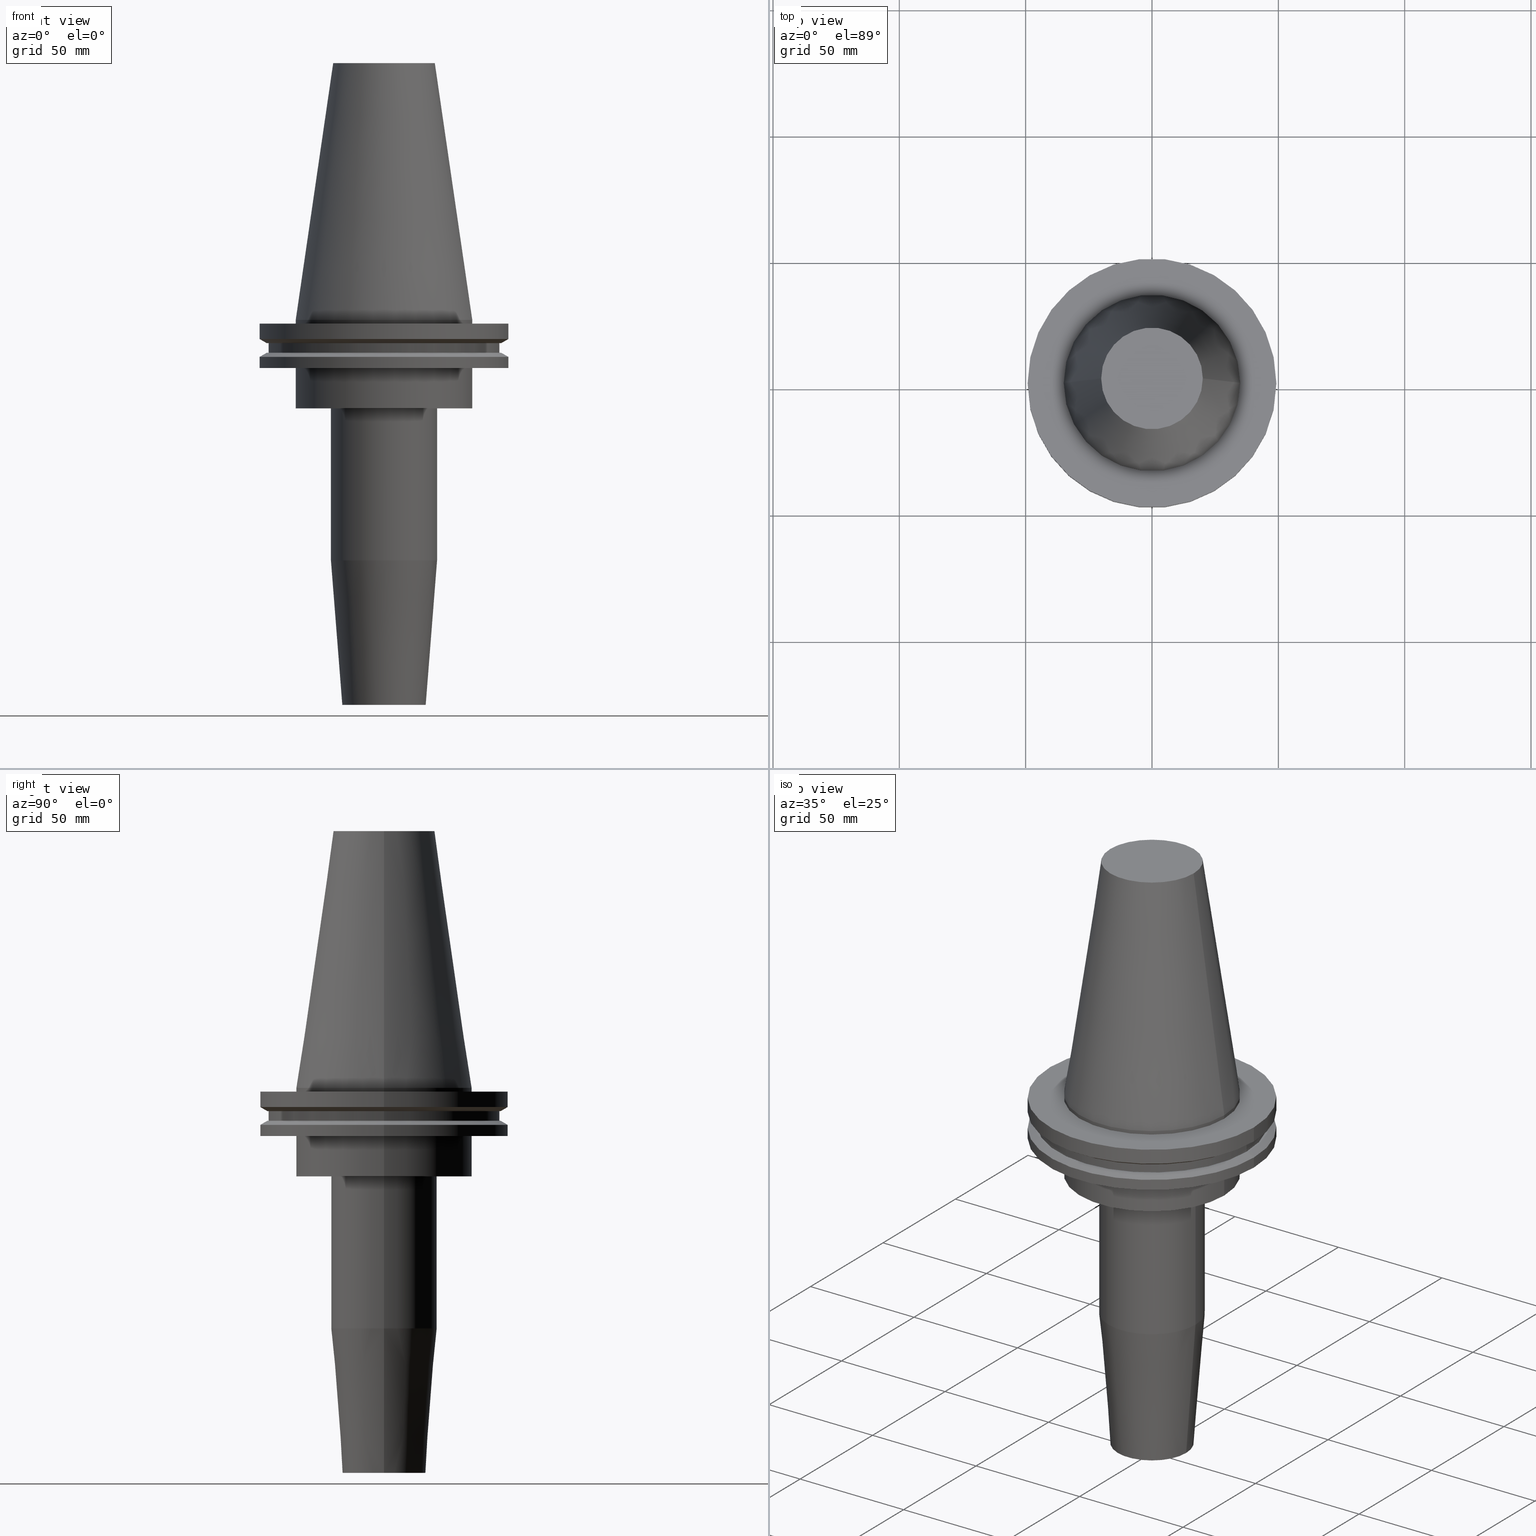
[diagram: canonical four-view strip — front | top / right | iso, engineering-drawing reading convention]
A machine part, canonical four-view strip (front | top / right | iso — engineering-drawing reading convention). The complete STEP part file that produces these views, byte-faithful:
ISO-10303-21;
HEADER;
FILE_DESCRIPTION (( 'STEP AP203' ),
    '1' );
FILE_NAME ('BCV50-SF_750-6.stp',
    '2022-03-03T17:22:03',
    ( '' ),
    ( '' ),
    'SwSTEP 2.0',
    'SolidWorks 2021',
    '' );
FILE_SCHEMA (( 'CONFIG_CONTROL_DESIGN' ));
ENDSEC;

DATA;
#1 = EDGE_LOOP ( 'NONE', ( #453, #149 ) ) ;
#2 = DIRECTION ( 'NONE',  ( -0.000000000000000000, -0.000000000000000000, 1.000000000000000000 ) ) ;
#3 = FACE_BOUND ( 'NONE', #76, .T. ) ;
#4 = ORIENTED_EDGE ( 'NONE', *, *, #840, .F. ) ;
#5 = ADVANCED_FACE ( 'NONE', ( #296 ), #182, .T. ) ;
#6 = AXIS2_PLACEMENT_3D ( 'NONE', #636, #567, #816 ) ;
#7 = AXIS2_PLACEMENT_3D ( 'NONE', #183, #189, #833 ) ;
#8 = CARTESIAN_POINT ( 'NONE',  ( 34.92499999999999716, 0.000000000000000000, -19.04999999999999716 ) ) ;
#9 = AXIS2_PLACEMENT_3D ( 'NONE', #271, #465, #527 ) ;
#10 = DIRECTION ( 'NONE',  ( -0.1443082272672999988, 0.000000000000000000, -0.9895327864921755756 ) ) ;
#11 = ORIENTED_EDGE ( 'NONE', *, *, #55, .F. ) ;
#12 = CARTESIAN_POINT ( 'NONE',  ( 49.21499999999999631, 0.000000000000000000, 101.5999999999999943 ) ) ;
#13 = DIRECTION ( 'NONE',  ( -0.000000000000000000, -0.000000000000000000, 1.000000000000000000 ) ) ;
#14 = EDGE_LOOP ( 'NONE', ( #173, #225, #566, #721 ) ) ;
#15 = APPLICATION_CONTEXT ( 'configuration controlled 3d designs of mechanical parts and assemblies' ) ;
#16 = CARTESIAN_POINT ( 'NONE',  ( 0.000000000000000000, 0.000000000000000000, -152.4000000000000057 ) ) ;
#17 = DIRECTION ( 'NONE',  ( 1.000000000000000000, 0.000000000000000000, 0.000000000000000000 ) ) ;
#18 = EDGE_CURVE ( 'NONE', #592, #367, #23, .T. ) ;
#19 = ORIENTED_EDGE ( 'NONE', *, *, #256, .F. ) ;
#20 = EDGE_LOOP ( 'NONE', ( #811, #420 ) ) ;
#21 = CIRCLE ( 'NONE', #616, 20.10819343178871321 ) ;
#22 = DIRECTION ( 'NONE',  ( 1.000000000000000000, 0.000000000000000000, 0.000000000000000000 ) ) ;
#23 = CIRCLE ( 'NONE', #378, 34.92499999999999716 ) ;
#24 = APPLICATION_PROTOCOL_DEFINITION ( 'international standard', 'config_control_design', 1994, #285 ) ;
#25 = AXIS2_PLACEMENT_3D ( 'NONE', #163, #423, #500 ) ;
#26 = CYLINDRICAL_SURFACE ( 'NONE', #586, 21.00000000000000000 ) ;
#27 = CONICAL_SURFACE ( 'NONE', #356, 16.50000000000000000, 0.07853981633973751431 ) ;
#28 = ORIENTED_EDGE ( 'NONE', *, *, #148, .F. ) ;
#29 = DIRECTION ( 'NONE',  ( -0.000000000000000000, -0.000000000000000000, 1.000000000000000000 ) ) ;
#30 = ORIENTED_EDGE ( 'NONE', *, *, #178, .T. ) ;
#31 = APPROVAL ( #723, 'UNSPECIFIED' ) ;
#32 = VERTEX_POINT ( 'NONE', #746 ) ;
#33 = EDGE_CURVE ( 'NONE', #308, #370, #315, .T. ) ;
#34 = FACE_BOUND ( 'NONE', #672, .T. ) ;
#35 = DIRECTION ( 'NONE',  ( 0.000000000000000000, -0.000000000000000000, 1.000000000000000000 ) ) ;
#36 = ORIENTED_EDGE ( 'NONE', *, *, #298, .F. ) ;
#37 = ADVANCED_FACE ( 'NONE', ( #626 ), #26, .T. ) ;
#38 = PLANE ( 'NONE',  #344 ) ;
#39 = CARTESIAN_POINT ( 'NONE',  ( 49.21499999999998920, 0.000000000000000000, -14.65761014474876944 ) ) ;
#40 = CARTESIAN_POINT ( 'NONE',  ( 0.000000000000000000, 0.000000000000000000, -19.04999999999999716 ) ) ;
#41 = AXIS2_PLACEMENT_3D ( 'NONE', #595, #590, #585 ) ;
#42 = ORIENTED_EDGE ( 'NONE', *, *, #84, .F. ) ;
#43 = AXIS2_PLACEMENT_3D ( 'NONE', #477, #91, #627 ) ;
#44 = CARTESIAN_POINT ( 'NONE',  ( 0.000000000000000000, 0.000000000000000000, -19.04999999999999716 ) ) ;
#45 = CARTESIAN_POINT ( 'NONE',  ( 0.000000000000000000, 0.000000000000000000, 0.000000000000000000 ) ) ;
#46 = CARTESIAN_POINT ( 'NONE',  ( 34.92499999999999716, 0.000000000000000000, 101.5999999999999943 ) ) ;
#47 = EDGE_CURVE ( 'NONE', #215, #729, #63, .T. ) ;
#48 = PERSON_AND_ORGANIZATION_ROLE ( 'classification_officer' ) ;
#49 = DIRECTION ( 'NONE',  ( -0.000000000000000000, -0.000000000000000000, 1.000000000000000000 ) ) ;
#50 = DIRECTION ( 'NONE',  ( 1.000000000000000000, 0.000000000000000000, 0.000000000000000000 ) ) ;
#51 = CIRCLE ( 'NONE', #62, 46.43919780457007818 ) ;
#52 = CONICAL_SURFACE ( 'NONE', #492, 46.43919780457007818, 1.047197551196575205 ) ;
#53 = CIRCLE ( 'NONE', #358, 49.21499999999998920 ) ;
#54 = CARTESIAN_POINT ( 'NONE',  ( 46.43919780457007818, 0.000000000000000000, -9.204999999999991189 ) ) ;
#55 = EDGE_CURVE ( 'NONE', #158, #538, #754, .T. ) ;
#56 = DIRECTION ( 'NONE',  ( -0.000000000000000000, -0.000000000000000000, 1.000000000000000000 ) ) ;
#57 = DIRECTION ( 'NONE',  ( -0.000000000000000000, -0.000000000000000000, 1.000000000000000000 ) ) ;
#58 = CARTESIAN_POINT ( 'NONE',  ( -45.64500000000000313, 5.589900314708094957E-15, -13.05499999999999794 ) ) ;
#59 = DIRECTION ( 'NONE',  ( 1.000000000000000000, 0.000000000000000000, 0.000000000000000000 ) ) ;
#60 = FACE_OUTER_BOUND ( 'NONE', #588, .T. ) ;
#61 = VERTEX_POINT ( 'NONE', #427 ) ;
#62 = AXIS2_PLACEMENT_3D ( 'NONE', #812, #299, #412 ) ;
#63 = CIRCLE ( 'NONE', #508, 34.92499999999999716 ) ;
#64 = AXIS2_PLACEMENT_3D ( 'NONE', #720, #536, #142 ) ;
#65 = CIRCLE ( 'NONE', #330, 49.21499999999999631 ) ;
#66 = CC_DESIGN_DATE_AND_TIME_ASSIGNMENT ( #488, #753, ( #832 ) ) ;
#67 = DIRECTION ( 'NONE',  ( -0.000000000000000000, -0.000000000000000000, 1.000000000000000000 ) ) ;
#68 = DIRECTION ( 'NONE',  ( -0.000000000000000000, -0.000000000000000000, 1.000000000000000000 ) ) ;
#69 = ORIENTED_EDGE ( 'NONE', *, *, #400, .F. ) ;
#70 = LINE ( 'NONE', #793, #671 ) ;
#71 = CARTESIAN_POINT ( 'NONE',  ( 21.00000000000000000, 0.000000000000000000, -35.04999999999999716 ) ) ;
#72 = ORIENTED_EDGE ( 'NONE', *, *, #245, .F. ) ;
#73 = ADVANCED_FACE ( 'NONE', ( #235, #690 ), #292, .F. ) ;
#74 = DIRECTION ( 'NONE',  ( -0.000000000000000000, -0.000000000000000000, 1.000000000000000000 ) ) ;
#75 = DIRECTION ( 'NONE',  ( -0.000000000000000000, -0.000000000000000000, 1.000000000000000000 ) ) ;
#76 = EDGE_LOOP ( 'NONE', ( #214, #815 ) ) ;
#77 = LOCAL_TIME ( 11, 22, 3.000000000000000000, #689 ) ;
#78 = VECTOR ( 'NONE', #445, 1000.000000000000000 ) ;
#79 = DIRECTION ( 'NONE',  ( -1.000000000000000000, 0.000000000000000000, 0.000000000000000000 ) ) ;
#80 = CIRCLE ( 'NONE', #562, 34.92499999999999716 ) ;
#81 = CYLINDRICAL_SURFACE ( 'NONE', #809, 9.525000000000019895 ) ;
#82 = APPROVAL_PERSON_ORGANIZATION ( #497, #371, #827 ) ;
#83 = ORIENTED_EDGE ( 'NONE', *, *, #810, .F. ) ;
#84 = EDGE_CURVE ( 'NONE', #538, #632, #305, .T. ) ;
#85 = DIRECTION ( 'NONE',  ( -0.000000000000000000, -0.000000000000000000, 1.000000000000000000 ) ) ;
#86 = CARTESIAN_POINT ( 'NONE',  ( 0.000000000000000000, 0.000000000000000000, -13.05499999999999794 ) ) ;
#87 = PERSON_AND_ORGANIZATION ( #629, #169 ) ;
#88 = ORIENTED_EDGE ( 'NONE', *, *, #368, .T. ) ;
#89 = EDGE_LOOP ( 'NONE', ( #560, #768, #109, #269 ) ) ;
#90 = ADVANCED_FACE ( 'NONE', ( #559 ), #498, .F. ) ;
#91 = DIRECTION ( 'NONE',  ( -0.000000000000000000, -0.000000000000000000, 1.000000000000000000 ) ) ;
#92 = CARTESIAN_POINT ( 'NONE',  ( -49.21499999999999631, 6.027099222003697826E-15, -1.499999999999987566 ) ) ;
#93 = ORIENTED_EDGE ( 'NONE', *, *, #485, .T. ) ;
#94 = VERTEX_POINT ( 'NONE', #108 ) ;
#95 = CARTESIAN_POINT ( 'NONE',  ( 0.000000000000000000, 0.000000000000000000, 0.000000000000000000 ) ) ;
#96 = CC_DESIGN_PERSON_AND_ORGANIZATION_ASSIGNMENT ( #640, #257, ( #649 ) ) ;
#97 = CIRCLE ( 'NONE', #771, 16.50000000000000000 ) ;
#98 = DATE_AND_TIME ( #683, #77 ) ;
#99 = DIRECTION ( 'NONE',  ( -0.000000000000000000, -0.000000000000000000, 1.000000000000000000 ) ) ;
#100 = ADVANCED_FACE ( 'NONE', ( #366, #307 ), #565, .F. ) ;
#101 = VERTEX_POINT ( 'NONE', #176 ) ;
#102 = CARTESIAN_POINT ( 'NONE',  ( 9.525000000000019895, 0.000000000000000000, 0.000000000000000000 ) ) ;
#103 = ORIENTED_EDGE ( 'NONE', *, *, #840, .T. ) ;
#104 = EDGE_CURVE ( 'NONE', #796, #101, #113, .T. ) ;
#105 = ORIENTED_EDGE ( 'NONE', *, *, #124, .F. ) ;
#106 = CARTESIAN_POINT ( 'NONE',  ( 0.000000000000000000, 0.000000000000000000, -1.499999999999987566 ) ) ;
#107 = APPLICATION_PROTOCOL_DEFINITION ( 'international standard', 'config_control_design', 1994, #15 ) ;
#108 = CARTESIAN_POINT ( 'NONE',  ( -34.92499999999999005, 4.277078946022130098E-15, -1.499999999999987566 ) ) ;
#109 = ORIENTED_EDGE ( 'NONE', *, *, #384, .T. ) ;
#110 = PLANE ( 'NONE',  #6 ) ;
#111 = AXIS2_PLACEMENT_3D ( 'NONE', #95, #752, #22 ) ;
#112 = DIRECTION ( 'NONE',  ( 1.000000000000000000, 0.000000000000000000, 0.000000000000000000 ) ) ;
#113 = CIRCLE ( 'NONE', #835, 49.21499999999998920 ) ;
#114 = CARTESIAN_POINT ( 'NONE',  ( 16.50000000000000000, 0.000000000000000000, -152.4000000000000057 ) ) ;
#115 = AXIS2_PLACEMENT_3D ( 'NONE', #254, #56, #512 ) ;
#116 = CONICAL_SURFACE ( 'NONE', #687, 34.92499999999999005, 0.1448138465474119452 ) ;
#117 = ADVANCED_FACE ( 'NONE', ( #382 ), #120, .T. ) ;
#118 = APPROVAL_DATE_TIME ( #646, #31 ) ;
#119 = CARTESIAN_POINT ( 'NONE',  ( -20.10819343178871321, 0.000000000000000000, 101.5999999999999801 ) ) ;
#120 = CYLINDRICAL_SURFACE ( 'NONE', #7, 49.21499999999999631 ) ;
#121 = COORDINATED_UNIVERSAL_TIME_OFFSET ( 6, 0, .BEHIND. ) ;
#122 = DIRECTION ( 'NONE',  ( -0.000000000000000000, -0.000000000000000000, 1.000000000000000000 ) ) ;
#123 = ORIENTED_EDGE ( 'NONE', *, *, #481, .F. ) ;
#124 = EDGE_CURVE ( 'NONE', #686, #230, #421, .T. ) ;
#125 = AXIS2_PLACEMENT_3D ( 'NONE', #240, #503, #767 ) ;
#126 = AXIS2_PLACEMENT_3D ( 'NONE', #231, #494, #416 ) ;
#127 = DESIGN_CONTEXT ( 'detailed design', #15, 'design' ) ;
#128 = CYLINDRICAL_SURFACE ( 'NONE', #617, 21.00000000000000000 ) ;
#129 = ORIENTED_EDGE ( 'NONE', *, *, #650, .F. ) ;
#130 = DIRECTION ( 'NONE',  ( -0.000000000000000000, -0.000000000000000000, 1.000000000000000000 ) ) ;
#131 = CARTESIAN_POINT ( 'NONE',  ( 16.50000000000000000, 0.000000000000000000, -152.4000000000000057 ) ) ;
#132 = ORIENTED_EDGE ( 'NONE', *, *, #246, .T. ) ;
#133 = DIRECTION ( 'NONE',  ( -0.000000000000000000, -0.000000000000000000, 1.000000000000000000 ) ) ;
#134 = DIRECTION ( 'NONE',  ( 1.000000000000000000, 0.000000000000000000, 0.000000000000000000 ) ) ;
#135 = VERTEX_POINT ( 'NONE', #770 ) ;
#136 = VERTEX_POINT ( 'NONE', #373 ) ;
#137 = VECTOR ( 'NONE', #776, 1000.000000000000114 ) ;
#138 = EDGE_CURVE ( 'NONE', #611, #136, #711, .T. ) ;
#139 = DIRECTION ( 'NONE',  ( -1.000000000000000000, 0.000000000000000000, -0.000000000000000000 ) ) ;
#140 = DIRECTION ( 'NONE',  ( 1.000000000000000000, 0.000000000000000000, 0.000000000000000000 ) ) ;
#141 = ORIENTED_EDGE ( 'NONE', *, *, #384, .F. ) ;
#142 = DIRECTION ( 'NONE',  ( 1.000000000000000000, 0.000000000000000000, 0.000000000000000000 ) ) ;
#143 = DIRECTION ( 'NONE',  ( 1.000000000000000000, 0.000000000000000000, 0.000000000000000000 ) ) ;
#144 = EDGE_LOOP ( 'NONE', ( #72, #361, #461, #750 ) ) ;
#145 = FACE_OUTER_BOUND ( 'NONE', #584, .T. ) ;
#146 = DIRECTION ( 'NONE',  ( -0.000000000000000000, -0.000000000000000000, 1.000000000000000000 ) ) ;
#147 = EDGE_LOOP ( 'NONE', ( #403, #229, #105, #742 ) ) ;
#148 = EDGE_CURVE ( 'NONE', #655, #747, #782, .T. ) ;
#149 = ORIENTED_EDGE ( 'NONE', *, *, #507, .T. ) ;
#150 = AXIS2_PLACEMENT_3D ( 'NONE', #577, #377, #839 ) ;
#151 = CARTESIAN_POINT ( 'NONE',  ( 46.43919780457007818, 5.857130358318725715E-15, -13.05499999999999794 ) ) ;
#152 = DIRECTION ( 'NONE',  ( -0.000000000000000000, -0.000000000000000000, 1.000000000000000000 ) ) ;
#153 = ORIENTED_EDGE ( 'NONE', *, *, #364, .T. ) ;
#154 = EDGE_LOOP ( 'NONE', ( #609, #763, #852, #628 ) ) ;
#155 = CARTESIAN_POINT ( 'NONE',  ( 0.000000000000000000, 34.92499999999999716, -35.04999999999999716 ) ) ;
#156 = CARTESIAN_POINT ( 'NONE',  ( 0.000000000000000000, 0.000000000000000000, 101.5999999999999943 ) ) ;
#157 = DIRECTION ( 'NONE',  ( -0.000000000000000000, -0.000000000000000000, 1.000000000000000000 ) ) ;
#158 = VERTEX_POINT ( 'NONE', #651 ) ;
#159 = PERSON_AND_ORGANIZATION_ROLE ( 'creator' ) ;
#160 = VERTEX_POINT ( 'NONE', #708 ) ;
#161 = ORIENTED_EDGE ( 'NONE', *, *, #410, .T. ) ;
#162 = CIRCLE ( 'NONE', #574, 49.21499999999998920 ) ;
#163 = CARTESIAN_POINT ( 'NONE',  ( 0.000000000000000000, 0.000000000000000000, -105.4000000000000057 ) ) ;
#164 = DIRECTION ( 'NONE',  ( 1.000000000000000000, 0.000000000000000000, 0.000000000000000000 ) ) ;
#165 = EDGE_CURVE ( 'NONE', #61, #581, #685, .T. ) ;
#166 = APPROVAL_STATUS ( 'not_yet_approved' ) ;
#167 = VECTOR ( 'NONE', #280, 1000.000000000000000 ) ;
#168 = CARTESIAN_POINT ( 'NONE',  ( 0.000000000000000000, 46.43919780457007818, -9.204999999999998295 ) ) ;
#169 = ORGANIZATION ( 'UNSPECIFIED', 'UNSPECIFIED', '' ) ;
#170 = EDGE_LOOP ( 'NONE', ( #480, #728 ) ) ;
#171 = CARTESIAN_POINT ( 'NONE',  ( 0.000000000000000000, 49.21499999999998920, -19.04999999999999716 ) ) ;
#172 = DIRECTION ( 'NONE',  ( 0.000000000000000000, -0.000000000000000000, 1.000000000000000000 ) ) ;
#173 = ORIENTED_EDGE ( 'NONE', *, *, #724, .F. ) ;
#174 = DIRECTION ( 'NONE',  ( -0.000000000000000000, -0.000000000000000000, 1.000000000000000000 ) ) ;
#175 = DIRECTION ( 'NONE',  ( -0.000000000000000000, -0.000000000000000000, 1.000000000000000000 ) ) ;
#176 = CARTESIAN_POINT ( 'NONE',  ( 49.21499999999998920, 0.000000000000000000, -19.04999999999999716 ) ) ;
#177 = ORIENTED_EDGE ( 'NONE', *, *, #293, .T. ) ;
#178 = EDGE_CURVE ( 'NONE', #611, #581, #325, .T. ) ;
#179 = AXIS2_PLACEMENT_3D ( 'NONE', #86, #349, #17 ) ;
#180 = SHAPE_DEFINITION_REPRESENTATION ( #443, #764 ) ;
#181 = CARTESIAN_POINT ( 'NONE',  ( 0.000000000000000000, 0.000000000000000000, -152.4000000000000057 ) ) ;
#182 = CONICAL_SURFACE ( 'NONE', #822, 49.21499999999998920, 1.047197551196554333 ) ;
#183 = CARTESIAN_POINT ( 'NONE',  ( 0.000000000000000000, 0.000000000000000000, 101.5999999999999943 ) ) ;
#184 = CC_DESIGN_PERSON_AND_ORGANIZATION_ASSIGNMENT ( #841, #48, ( #561 ) ) ;
#185 = ADVANCED_FACE ( 'NONE', ( #505 ), #314, .F. ) ;
#186 = SECURITY_CLASSIFICATION_LEVEL ( 'unclassified' ) ;
#187 = CARTESIAN_POINT ( 'NONE',  ( -46.43919780457007818, 5.687161494633754392E-15, -9.204999999999991189 ) ) ;
#188 = LINE ( 'NONE', #513, #726 ) ;
#189 = DIRECTION ( 'NONE',  ( -0.000000000000000000, -0.000000000000000000, 1.000000000000000000 ) ) ;
#190 = AXIS2_PLACEMENT_3D ( 'NONE', #232, #830, #295 ) ;
#191 = LOCAL_TIME ( 11, 22, 3.000000000000000000, #121 ) ;
#192 = VECTOR ( 'NONE', #516, 999.9999999999998863 ) ;
#193 = CC_DESIGN_APPROVAL ( #31, ( #561 ) ) ;
#194 = DIRECTION ( 'NONE',  ( 0.8660254037844273833, 0.000000000000000000, 0.5000000000000195399 ) ) ;
#195 = ORIENTED_EDGE ( 'NONE', *, *, #241, .F. ) ;
#196 = DIRECTION ( 'NONE',  ( 1.000000000000000000, 0.000000000000000000, 0.000000000000000000 ) ) ;
#197 = DIRECTION ( 'NONE',  ( -0.000000000000000000, -0.000000000000000000, 1.000000000000000000 ) ) ;
#198 = ORIENTED_EDGE ( 'NONE', *, *, #337, .F. ) ;
#199 = EDGE_CURVE ( 'NONE', #135, #32, #460, .T. ) ;
#200 = CARTESIAN_POINT ( 'NONE',  ( 0.000000000000000000, 0.000000000000000000, -13.05499999999999794 ) ) ;
#201 = DIRECTION ( 'NONE',  ( 1.000000000000000000, 0.000000000000000000, 0.000000000000000000 ) ) ;
#202 = VERTEX_POINT ( 'NONE', #119 ) ;
#203 = VECTOR ( 'NONE', #591, 1000.000000000000000 ) ;
#204 = CARTESIAN_POINT ( 'NONE',  ( 0.000000000000000000, 0.000000000000000000, -95.22207868720845170 ) ) ;
#205 = CARTESIAN_POINT ( 'NONE',  ( -34.92499999999999716, 4.277078946022130887E-15, -19.04999999999999716 ) ) ;
#206 = CC_DESIGN_DATE_AND_TIME_ASSIGNMENT ( #594, #769, ( #561 ) ) ;
#207 = DIRECTION ( 'NONE',  ( 1.000000000000000000, 0.000000000000000000, 0.000000000000000000 ) ) ;
#208 = CARTESIAN_POINT ( 'NONE',  ( 0.000000000000000000, 0.000000000000000000, -1.499999999999987566 ) ) ;
#209 = ADVANCED_FACE ( 'NONE', ( #385 ), #52, .T. ) ;
#210 = ORIENTED_EDGE ( 'NONE', *, *, #598, .F. ) ;
#211 = EDGE_LOOP ( 'NONE', ( #236, #282, #659, #195 ) ) ;
#212 = CARTESIAN_POINT ( 'NONE',  ( 0.000000000000000000, 0.000000000000000000, -13.05499999999999794 ) ) ;
#213 = FACE_OUTER_BOUND ( 'NONE', #817, .T. ) ;
#214 = ORIENTED_EDGE ( 'NONE', *, *, #698, .F. ) ;
#215 = VERTEX_POINT ( 'NONE', #774 ) ;
#216 = CARTESIAN_POINT ( 'NONE',  ( -16.50000000000000000, 2.296212748401287578E-15, -152.4000000000000057 ) ) ;
#217 = AXIS2_PLACEMENT_3D ( 'NONE', #709, #259, #50 ) ;
#218 = FACE_OUTER_BOUND ( 'NONE', #147, .T. ) ;
#219 = COORDINATED_UNIVERSAL_TIME_OFFSET ( 6, 0, .BEHIND. ) ;
#220 = ORIENTED_EDGE ( 'NONE', *, *, #18, .F. ) ;
#221 = EDGE_LOOP ( 'NONE', ( #618, #390, #396, #28 ) ) ;
#222 = DIRECTION ( 'NONE',  ( -0.000000000000000000, -0.000000000000000000, 1.000000000000000000 ) ) ;
#223 = PERSON_AND_ORGANIZATION_ROLE ( 'design_owner' ) ;
#224 = ORIENTED_EDGE ( 'NONE', *, *, #246, .F. ) ;
#225 = ORIENTED_EDGE ( 'NONE', *, *, #33, .T. ) ;
#226 = EDGE_CURVE ( 'NONE', #135, #308, #831, .T. ) ;
#227 = CARTESIAN_POINT ( 'NONE',  ( 0.000000000000000000, 0.000000000000000000, 101.5999999999999943 ) ) ;
#228 = CARTESIAN_POINT ( 'NONE',  ( 0.000000000000000000, 0.000000000000000000, -1.499999999999987566 ) ) ;
#229 = ORIENTED_EDGE ( 'NONE', *, *, #578, .T. ) ;
#230 = VERTEX_POINT ( 'NONE', #647 ) ;
#231 = CARTESIAN_POINT ( 'NONE',  ( 0.000000000000000000, 0.000000000000000000, -9.204999999999991189 ) ) ;
#232 = CARTESIAN_POINT ( 'NONE',  ( 0.000000000000000000, 0.000000000000000000, -9.204999999999991189 ) ) ;
#233 = AXIS2_PLACEMENT_3D ( 'NONE', #761, #814, #637 ) ;
#234 = APPROVAL_DATE_TIME ( #502, #313 ) ;
#235 = FACE_OUTER_BOUND ( 'NONE', #633, .T. ) ;
#236 = ORIENTED_EDGE ( 'NONE', *, *, #374, .T. ) ;
#237 = DIRECTION ( 'NONE',  ( 1.000000000000000000, 0.000000000000000000, 0.000000000000000000 ) ) ;
#238 = DIRECTION ( 'NONE',  ( 1.000000000000000000, 0.000000000000000000, 0.000000000000000000 ) ) ;
#239 = COORDINATED_UNIVERSAL_TIME_OFFSET ( 6, 0, .BEHIND. ) ;
#240 = CARTESIAN_POINT ( 'NONE',  ( 0.000000000000000000, 49.21499999999999631, -1.499999999999992895 ) ) ;
#241 = EDGE_CURVE ( 'NONE', #32, #370, #520, .T. ) ;
#242 = ORIENTED_EDGE ( 'NONE', *, *, #368, .F. ) ;
#243 = CARTESIAN_POINT ( 'NONE',  ( 0.000000000000000000, 0.000000000000000000, 101.5999999999999943 ) ) ;
#244 = CARTESIAN_POINT ( 'NONE',  ( 34.92499999999999005, 4.277078946022130098E-15, 0.000000000000000000 ) ) ;
#245 = EDGE_CURVE ( 'NONE', #818, #538, #638, .T. ) ;
#246 = EDGE_CURVE ( 'NONE', #484, #469, #97, .T. ) ;
#247 = AXIS2_PLACEMENT_3D ( 'NONE', #156, #501, #625 ) ;
#248 = DIRECTION ( 'NONE',  ( -0.000000000000000000, -0.000000000000000000, 1.000000000000000000 ) ) ;
#249 = VECTOR ( 'NONE', #85, 1000.000000000000000 ) ;
#250 = CIRCLE ( 'NONE', #43, 21.00000000000000000 ) ;
#251 = CC_DESIGN_PERSON_AND_ORGANIZATION_ASSIGNMENT ( #760, #441, ( #649 ) ) ;
#252 = EDGE_CURVE ( 'NONE', #677, #686, #448, .T. ) ;
#253 = PERSON_AND_ORGANIZATION ( #629, #169 ) ;
#254 = CARTESIAN_POINT ( 'NONE',  ( 0.000000000000000000, 0.000000000000000000, -9.204999999999991189 ) ) ;
#255 = LINE ( 'NONE', #320, #137 ) ;
#256 = EDGE_CURVE ( 'NONE', #469, #160, #372, .T. ) ;
#257 = PERSON_AND_ORGANIZATION_ROLE ( 'design_supplier' ) ;
#258 = CARTESIAN_POINT ( 'NONE',  ( -16.50000000000000000, 2.020667218593133100E-15, -152.4000000000000057 ) ) ;
#259 = DIRECTION ( 'NONE',  ( -0.000000000000000000, -0.000000000000000000, 1.000000000000000000 ) ) ;
#260 = EDGE_LOOP ( 'NONE', ( #350, #301, #472, #297 ) ) ;
#261 = CARTESIAN_POINT ( 'NONE',  ( -49.21499999999998920, 0.000000000000000000, -14.65761014474876944 ) ) ;
#262 = ORIENTED_EDGE ( 'NONE', *, *, #47, .F. ) ;
#263 = VECTOR ( 'NONE', #525, 999.9999999999998863 ) ;
#264 = LINE ( 'NONE', #12, #167 ) ;
#265 = ORIENTED_EDGE ( 'NONE', *, *, #549, .T. ) ;
#266 = ADVANCED_FACE ( 'NONE', ( #775 ), #128, .T. ) ;
#267 = CARTESIAN_POINT ( 'NONE',  ( 0.000000000000000000, 0.000000000000000000, 101.5999999999999943 ) ) ;
#268 = CYLINDRICAL_SURFACE ( 'NONE', #289, 45.64500000000000313 ) ;
#269 = ORIENTED_EDGE ( 'NONE', *, *, #541, .F. ) ;
#270 = ORIENTED_EDGE ( 'NONE', *, *, #623, .T. ) ;
#271 = CARTESIAN_POINT ( 'NONE',  ( 0.000000000000000000, 0.000000000000000000, 101.5999999999999943 ) ) ;
#272 = CARTESIAN_POINT ( 'NONE',  ( 0.000000000000000000, 0.000000000000000000, -7.602389855251287187 ) ) ;
#273 = ORIENTED_EDGE ( 'NONE', *, *, #481, .T. ) ;
#274 = CONICAL_SURFACE ( 'NONE', #381, 49.21499999999998920, 1.047197551196554333 ) ;
#275 = CIRCLE ( 'NONE', #758, 21.00000000000000000 ) ;
#276 = EDGE_CURVE ( 'NONE', #215, #367, #706, .T. ) ;
#277 = APPROVAL_PERSON_ORGANIZATION ( #253, #31, #838 ) ;
#278 = CARTESIAN_POINT ( 'NONE',  ( 49.21500000000000341, 0.000000000000000000, -7.602389855251287187 ) ) ;
#279 = CARTESIAN_POINT ( 'NONE',  ( -34.92499999999999005, 0.000000000000000000, 0.000000000000000000 ) ) ;
#280 = DIRECTION ( 'NONE',  ( -0.000000000000000000, -0.000000000000000000, 1.000000000000000000 ) ) ;
#281 = CARTESIAN_POINT ( 'NONE',  ( 45.64500000000000313, 0.000000000000000000, -13.05499999999999794 ) ) ;
#282 = ORIENTED_EDGE ( 'NONE', *, *, #226, .T. ) ;
#283 = CARTESIAN_POINT ( 'NONE',  ( 0.000000000000000000, 0.000000000000000000, 101.5999999999999801 ) ) ;
#284 = CC_DESIGN_PERSON_AND_ORGANIZATION_ASSIGNMENT ( #306, #159, ( #832 ) ) ;
#285 = APPLICATION_CONTEXT ( 'configuration controlled 3d designs of mechanical parts and assemblies' ) ;
#286 = EDGE_LOOP ( 'NONE', ( #387, #504, #714, #220 ) ) ;
#287 = AXIS2_PLACEMENT_3D ( 'NONE', #171, #552, #682 ) ;
#288 = VECTOR ( 'NONE', #194, 1000.000000000000000 ) ;
#289 = AXIS2_PLACEMENT_3D ( 'NONE', #798, #795, #143 ) ;
#290 = CIRCLE ( 'NONE', #179, 45.64500000000000313 ) ;
#291 = DIRECTION ( 'NONE',  ( 0.000000000000000000, 0.000000000000000000, -1.000000000000000000 ) ) ;
#292 = PLANE ( 'NONE',  #342 ) ;
#293 = EDGE_CURVE ( 'NONE', #557, #777, #780, .T. ) ;
#294 = FACE_OUTER_BOUND ( 'NONE', #399, .T. ) ;
#295 = DIRECTION ( 'NONE',  ( 1.000000000000000000, 0.000000000000000000, 0.000000000000000000 ) ) ;
#296 = FACE_OUTER_BOUND ( 'NONE', #154, .T. ) ;
#297 = ORIENTED_EDGE ( 'NONE', *, *, #33, .F. ) ;
#298 = EDGE_CURVE ( 'NONE', #469, #484, #404, .T. ) ;
#299 = DIRECTION ( 'NONE',  ( -0.000000000000000000, -0.000000000000000000, 1.000000000000000000 ) ) ;
#300 = DIRECTION ( 'NONE',  ( 1.000000000000000000, 0.000000000000000000, 0.000000000000000000 ) ) ;
#301 = ORIENTED_EDGE ( 'NONE', *, *, #199, .T. ) ;
#302 = ADVANCED_FACE ( 'NONE', ( #401 ), #274, .T. ) ;
#303 = PLANE ( 'NONE',  #287 ) ;
#304 = LOCAL_TIME ( 11, 22, 3.000000000000000000, #219 ) ;
#305 = CIRCLE ( 'NONE', #233, 34.92499999999999005 ) ;
#306 = PERSON_AND_ORGANIZATION ( #629, #169 ) ;
#307 = FACE_OUTER_BOUND ( 'NONE', #1, .T. ) ;
#308 = VERTEX_POINT ( 'NONE', #334 ) ;
#309 = CARTESIAN_POINT ( 'NONE',  ( -49.21499999999998920, 6.027099222003697037E-15, -14.65761014474876944 ) ) ;
#310 = ADVANCED_FACE ( 'NONE', ( #145 ), #116, .T. ) ;
#311 = EDGE_LOOP ( 'NONE', ( #597, #429 ) ) ;
#312 = DIRECTION ( 'NONE',  ( -0.000000000000000000, -0.000000000000000000, 1.000000000000000000 ) ) ;
#313 = APPROVAL ( #166, 'UNSPECIFIED' ) ;
#314 = CYLINDRICAL_SURFACE ( 'NONE', #150, 9.525000000000019895 ) ;
#315 = CIRCLE ( 'NONE', #437, 49.21500000000000341 ) ;
#316 = CIRCLE ( 'NONE', #393, 46.43919780457007818 ) ;
#317 = ADVANCED_FACE ( 'NONE', ( #345 ), #599, .F. ) ;
#318 = COORDINATED_UNIVERSAL_TIME_OFFSET ( 6, 0, .BEHIND. ) ;
#319 = DIRECTION ( 'NONE',  ( 0.1443082272672999988, 1.767266086135277066E-17, -0.9895327864921755756 ) ) ;
#320 = CARTESIAN_POINT ( 'NONE',  ( 49.21499999999998920, 6.027099222003697037E-15, -14.65761014474876944 ) ) ;
#321 = EDGE_LOOP ( 'NONE', ( #449, #30, #602, #351 ) ) ;
#322 = DIRECTION ( 'NONE',  ( 1.000000000000000000, 0.000000000000000000, 0.000000000000000000 ) ) ;
#323 =( NAMED_UNIT ( * ) PLANE_ANGLE_UNIT ( ) SI_UNIT ( $, .RADIAN. ) );
#324 = ADVANCED_FACE ( 'NONE', ( #397 ), #853, .T. ) ;
#325 = LINE ( 'NONE', #707, #475 ) ;
#326 = CYLINDRICAL_SURFACE ( 'NONE', #634, 45.64500000000000313 ) ;
#327 = ORIENTED_EDGE ( 'NONE', *, *, #199, .F. ) ;
#328 = CIRCLE ( 'NONE', #376, 49.21499999999998920 ) ;
#329 = AXIS2_PLACEMENT_3D ( 'NONE', #227, #486, #237 ) ;
#330 = AXIS2_PLACEMENT_3D ( 'NONE', #208, #736, #607 ) ;
#331 = CARTESIAN_POINT ( 'NONE',  ( 0.000000000000000000, 0.000000000000000000, -14.65761014474876944 ) ) ;
#332 = LINE ( 'NONE', #339, #203 ) ;
#333 = ORIENTED_EDGE ( 'NONE', *, *, #124, .T. ) ;
#334 = CARTESIAN_POINT ( 'NONE',  ( -49.21500000000000341, 6.027099222003699404E-15, -7.602389855251287187 ) ) ;
#335 = DIRECTION ( 'NONE',  ( -0.000000000000000000, -0.000000000000000000, 1.000000000000000000 ) ) ;
#336 = VERTEX_POINT ( 'NONE', #151 ) ;
#337 = EDGE_CURVE ( 'NONE', #370, #414, #264, .T. ) ;
#338 = DIRECTION ( 'NONE',  ( 1.000000000000000000, 0.000000000000000000, 0.000000000000000000 ) ) ;
#339 = CARTESIAN_POINT ( 'NONE',  ( -21.00000000000000000, 2.571758278209441661E-15, 0.000000000000000000 ) ) ;
#340 = ORIENTED_EDGE ( 'NONE', *, *, #343, .T. ) ;
#341 = AXIS2_PLACEMENT_3D ( 'NONE', #228, #688, #352 ) ;
#342 = AXIS2_PLACEMENT_3D ( 'NONE', #168, #35, #300 ) ;
#343 = EDGE_CURVE ( 'NONE', #847, #677, #772, .T. ) ;
#344 = AXIS2_PLACEMENT_3D ( 'NONE', #155, #681, #434 ) ;
#345 = FACE_OUTER_BOUND ( 'NONE', #311, .T. ) ;
#346 = CARTESIAN_POINT ( 'NONE',  ( 0.000000000000000000, 0.000000000000000000, 0.000000000000000000 ) ) ;
#347 = EDGE_LOOP ( 'NONE', ( #622, #608, #808, #744 ) ) ;
#348 = ORIENTED_EDGE ( 'NONE', *, *, #55, .T. ) ;
#349 = DIRECTION ( 'NONE',  ( -0.000000000000000000, -0.000000000000000000, 1.000000000000000000 ) ) ;
#350 = ORIENTED_EDGE ( 'NONE', *, *, #226, .F. ) ;
#351 = ORIENTED_EDGE ( 'NONE', *, *, #844, .F. ) ;
#352 = DIRECTION ( 'NONE',  ( 1.000000000000000000, 0.000000000000000000, 0.000000000000000000 ) ) ;
#353 = ADVANCED_FACE ( 'NONE', ( #735 ), #731, .T. ) ;
#354 = DIRECTION ( 'NONE',  ( 1.000000000000000000, 0.000000000000000000, 0.000000000000000000 ) ) ;
#355 = ORIENTED_EDGE ( 'NONE', *, *, #256, .T. ) ;
#356 = AXIS2_PLACEMENT_3D ( 'NONE', #740, #152, #545 ) ;
#357 = AXIS2_PLACEMENT_3D ( 'NONE', #483, #172, #431 ) ;
#358 = AXIS2_PLACEMENT_3D ( 'NONE', #471, #395, #537 ) ;
#359 = FACE_OUTER_BOUND ( 'NONE', #170, .T. ) ;
#360 = DIRECTION ( 'NONE',  ( 1.000000000000000000, 0.000000000000000000, 0.000000000000000000 ) ) ;
#361 = ORIENTED_EDGE ( 'NONE', *, *, #635, .F. ) ;
#362 = CARTESIAN_POINT ( 'NONE',  ( 34.92499999999999005, 0.000000000000000000, 101.5999999999999943 ) ) ;
#363 = EDGE_LOOP ( 'NONE', ( #4, #83 ) ) ;
#364 = EDGE_CURVE ( 'NONE', #367, #592, #80, .T. ) ;
#365 = FACE_OUTER_BOUND ( 'NONE', #783, .T. ) ;
#366 = FACE_BOUND ( 'NONE', #363, .T. ) ;
#367 = VERTEX_POINT ( 'NONE', #8 ) ;
#368 = EDGE_CURVE ( 'NONE', #796, #747, #674, .T. ) ;
#369 = DIRECTION ( 'NONE',  ( -1.000000000000000000, 0.000000000000000000, 0.000000000000000000 ) ) ;
#370 = VERTEX_POINT ( 'NONE', #278 ) ;
#371 = APPROVAL ( #806, 'UNSPECIFIED' ) ;
#372 = LINE ( 'NONE', #258, #192 ) ;
#373 = CARTESIAN_POINT ( 'NONE',  ( 9.525000000000007461, 0.000000000000000000, -152.4000000000000057 ) ) ;
#374 = EDGE_CURVE ( 'NONE', #32, #135, #493, .T. ) ;
#375 = PRODUCT ( 'BCV50-SF_750-6', 'BCV50-SF_750-6', '', ( #695 ) ) ;
#376 = AXIS2_PLACEMENT_3D ( 'NONE', #44, #759, #164 ) ;
#377 = DIRECTION ( 'NONE',  ( -0.000000000000000000, -0.000000000000000000, 1.000000000000000000 ) ) ;
#378 = AXIS2_PLACEMENT_3D ( 'NONE', #40, #556, #828 ) ;
#379 = CYLINDRICAL_SURFACE ( 'NONE', #217, 34.92499999999999005 ) ;
#380 = ORIENTED_EDGE ( 'NONE', *, *, #464, .T. ) ;
#381 = AXIS2_PLACEMENT_3D ( 'NONE', #331, #851, #467 ) ;
#382 = FACE_OUTER_BOUND ( 'NONE', #738, .T. ) ;
#383 = EDGE_LOOP ( 'NONE', ( #490, #432 ) ) ;
#384 = EDGE_CURVE ( 'NONE', #692, #557, #70, .T. ) ;
#385 = FACE_OUTER_BOUND ( 'NONE', #211, .T. ) ;
#386 = FACE_OUTER_BOUND ( 'NONE', #663, .T. ) ;
#387 = ORIENTED_EDGE ( 'NONE', *, *, #623, .F. ) ;
#388 = EDGE_CURVE ( 'NONE', #655, #336, #316, .T. ) ;
#389 = LINE ( 'NONE', #528, #850 ) ;
#390 = ORIENTED_EDGE ( 'NONE', *, *, #530, .T. ) ;
#391 = CLOSED_SHELL ( 'NONE', ( #185, #639, #266, #496, #117, #209, #573, #302, #353, #787, #310, #733, #317, #428, #324, #719, #440, #5, #569, #547, #73, #797, #748, #100, #515, #37, #691, #836, #667, #90 ) ) ;
#392 = EDGE_LOOP ( 'NONE', ( #455, #88, #210, #408 ) ) ;
#393 = AXIS2_PLACEMENT_3D ( 'NONE', #212, #67, #406 ) ;
#394 = DIRECTION ( 'NONE',  ( -0.000000000000000000, -0.000000000000000000, 1.000000000000000000 ) ) ;
#395 = DIRECTION ( 'NONE',  ( -0.000000000000000000, -0.000000000000000000, 1.000000000000000000 ) ) ;
#396 = ORIENTED_EDGE ( 'NONE', *, *, #598, .T. ) ;
#397 = FACE_OUTER_BOUND ( 'NONE', #286, .T. ) ;
#398 = CARTESIAN_POINT ( 'NONE',  ( -9.525000000000035882, 1.166476076187858163E-15, -105.4000000000000057 ) ) ;
#399 = EDGE_LOOP ( 'NONE', ( #242, #542, #93, #718 ) ) ;
#400 = EDGE_CURVE ( 'NONE', #692, #160, #275, .T. ) ;
#401 = FACE_OUTER_BOUND ( 'NONE', #221, .T. ) ;
#402 = CARTESIAN_POINT ( 'NONE',  ( 0.000000000000000000, 0.000000000000000000, -152.4000000000000057 ) ) ;
#403 = ORIENTED_EDGE ( 'NONE', *, *, #698, .T. ) ;
#404 = CIRCLE ( 'NONE', #41, 16.50000000000000000 ) ;
#405 = AXIS2_PLACEMENT_3D ( 'NONE', #267, #2, #196 ) ;
#406 = DIRECTION ( 'NONE',  ( 1.000000000000000000, 0.000000000000000000, 0.000000000000000000 ) ) ;
#407 = CARTESIAN_POINT ( 'NONE',  ( 21.00000000000000000, 0.000000000000000000, -95.22207868720845170 ) ) ;
#408 = ORIENTED_EDGE ( 'NONE', *, *, #485, .F. ) ;
#409 = ORIENTED_EDGE ( 'NONE', *, *, #84, .T. ) ;
#410 = EDGE_CURVE ( 'NONE', #94, #632, #454, .T. ) ;
#411 = CARTESIAN_POINT ( 'NONE',  ( 0.000000000000000000, 0.000000000000000000, -35.04999999999999716 ) ) ;
#412 = DIRECTION ( 'NONE',  ( 1.000000000000000000, 0.000000000000000000, 0.000000000000000000 ) ) ;
#413 = CARTESIAN_POINT ( 'NONE',  ( 0.000000000000000000, 0.000000000000000000, -35.04999999999999716 ) ) ;
#414 = VERTEX_POINT ( 'NONE', #739 ) ;
#415 = EDGE_CURVE ( 'NONE', #230, #686, #703, .T. ) ;
#416 = DIRECTION ( 'NONE',  ( 1.000000000000000000, 0.000000000000000000, 0.000000000000000000 ) ) ;
#417 = CARTESIAN_POINT ( 'NONE',  ( -21.00000000000000000, 2.571758278209441661E-15, -35.04999999999999716 ) ) ;
#418 = PERSON_AND_ORGANIZATION ( #629, #169 ) ;
#419 = CARTESIAN_POINT ( 'NONE',  ( 0.000000000000000000, 0.000000000000000000, -14.65761014474876944 ) ) ;
#420 = ORIENTED_EDGE ( 'NONE', *, *, #444, .F. ) ;
#421 = CIRCLE ( 'NONE', #792, 45.64500000000000313 ) ;
#422 = AXIS2_PLACEMENT_3D ( 'NONE', #200, #539, #524 ) ;
#423 = DIRECTION ( 'NONE',  ( -0.000000000000000000, -0.000000000000000000, 1.000000000000000000 ) ) ;
#424 = DIRECTION ( 'NONE',  ( 1.000000000000000000, 0.000000000000000000, 0.000000000000000000 ) ) ;
#425 = CC_DESIGN_APPROVAL ( #313, ( #649 ) ) ;
#426 = APPROVAL_ROLE ( '' ) ;
#427 = CARTESIAN_POINT ( 'NONE',  ( 9.525000000000034106, 0.000000000000000000, -105.4000000000000057 ) ) ;
#428 = ADVANCED_FACE ( 'NONE', ( #693, #630 ), #38, .F. ) ;
#429 = ORIENTED_EDGE ( 'NONE', *, *, #704, .T. ) ;
#430 = DIRECTION ( 'NONE',  ( -0.000000000000000000, -0.000000000000000000, 1.000000000000000000 ) ) ;
#431 = DIRECTION ( 'NONE',  ( 1.000000000000000000, 0.000000000000000000, 0.000000000000000000 ) ) ;
#432 = ORIENTED_EDGE ( 'NONE', *, *, #762, .T. ) ;
#433 = UNCERTAINTY_MEASURE_WITH_UNIT (LENGTH_MEASURE( 1.000000000000000082E-05 ), #778, 'distance_accuracy_value', 'NONE');
#434 = DIRECTION ( 'NONE',  ( 1.000000000000000000, 0.000000000000000000, 0.000000000000000000 ) ) ;
#435 = FACE_OUTER_BOUND ( 'NONE', #260, .T. ) ;
#436 = CARTESIAN_POINT ( 'NONE',  ( 0.000000000000000000, 0.000000000000000000, -19.04999999999999716 ) ) ;
#437 = AXIS2_PLACEMENT_3D ( 'NONE', #489, #157, #360 ) ;
#438 = CONICAL_SURFACE ( 'NONE', #660, 16.50000000000000000, 0.07853981633973751431 ) ;
#439 = DIRECTION ( 'NONE',  ( 1.000000000000000000, 0.000000000000000000, 0.000000000000000000 ) ) ;
#440 = ADVANCED_FACE ( 'NONE', ( #294 ), #825, .T. ) ;
#441 = PERSON_AND_ORGANIZATION_ROLE ( 'creator' ) ;
#442 = CARTESIAN_POINT ( 'NONE',  ( 0.000000000000000000, 0.000000000000000000, -105.4000000000000057 ) ) ;
#443 = PRODUCT_DEFINITION_SHAPE ( 'NONE', 'NONE',  #832 ) ;
#444 = EDGE_CURVE ( 'NONE', #581, #61, #807, .T. ) ;
#445 = DIRECTION ( 'NONE',  ( -0.8660254037844273833, 1.060575238724893110E-16, 0.5000000000000195399 ) ) ;
#446 = CARTESIAN_POINT ( 'NONE',  ( 34.92499999999999005, 4.277078946022130098E-15, 0.000000000000000000 ) ) ;
#447 = CIRCLE ( 'NONE', #755, 34.92499999999999005 ) ;
#448 = LINE ( 'NONE', #713, #601 ) ;
#449 = ORIENTED_EDGE ( 'NONE', *, *, #138, .F. ) ;
#450 = CIRCLE ( 'NONE', #589, 9.525000000000007461 ) ;
#451 = EDGE_CURVE ( 'NONE', #729, #215, #619, .T. ) ;
#452 = DIRECTION ( 'NONE',  ( -0.000000000000000000, -0.000000000000000000, 1.000000000000000000 ) ) ;
#453 = ORIENTED_EDGE ( 'NONE', *, *, #650, .T. ) ;
#454 = LINE ( 'NONE', #470, #462 ) ;
#455 = ORIENTED_EDGE ( 'NONE', *, *, #819, .T. ) ;
#456 = ORIENTED_EDGE ( 'NONE', *, *, #410, .F. ) ;
#457 = CARTESIAN_POINT ( 'NONE',  ( 0.000000000000000000, 0.000000000000000000, -19.04999999999999716 ) ) ;
#458 = DIRECTION ( 'NONE',  ( -0.000000000000000000, -0.000000000000000000, 1.000000000000000000 ) ) ;
#459 = VECTOR ( 'NONE', #430, 1000.000000000000000 ) ;
#460 = CIRCLE ( 'NONE', #115, 46.43919780457007818 ) ;
#461 = ORIENTED_EDGE ( 'NONE', *, *, #605, .T. ) ;
#462 = VECTOR ( 'NONE', #133, 1000.000000000000000 ) ;
#463 = LOCAL_TIME ( 11, 22, 3.000000000000000000, #318 ) ;
#464 = EDGE_CURVE ( 'NONE', #136, #611, #450, .T. ) ;
#465 = DIRECTION ( 'NONE',  ( -0.000000000000000000, -0.000000000000000000, 1.000000000000000000 ) ) ;
#466 = CARTESIAN_POINT ( 'NONE',  ( -34.92499999999999005, 0.000000000000000000, 0.000000000000000000 ) ) ;
#467 = DIRECTION ( 'NONE',  ( -1.000000000000000000, 0.000000000000000000, 0.000000000000000000 ) ) ;
#468 = CARTESIAN_POINT ( 'NONE',  ( -46.43919780457007818, 0.000000000000000000, -13.05499999999999794 ) ) ;
#469 = VERTEX_POINT ( 'NONE', #216 ) ;
#470 = CARTESIAN_POINT ( 'NONE',  ( -34.92499999999999005, 4.277078946022130098E-15, 101.5999999999999943 ) ) ;
#471 = CARTESIAN_POINT ( 'NONE',  ( 0.000000000000000000, 0.000000000000000000, -14.65761014474876944 ) ) ;
#472 = ORIENTED_EDGE ( 'NONE', *, *, #241, .T. ) ;
#473 = EDGE_CURVE ( 'NONE', #160, #692, #250, .T. ) ;
#474 = ORIENTED_EDGE ( 'NONE', *, *, #605, .F. ) ;
#475 = VECTOR ( 'NONE', #49, 1000.000000000000000 ) ;
#476 = VECTOR ( 'NONE', #10, 999.9999999999998863 ) ;
#477 = CARTESIAN_POINT ( 'NONE',  ( 0.000000000000000000, 0.000000000000000000, -95.22207868720845170 ) ) ;
#478 = DIRECTION ( 'NONE',  ( -0.000000000000000000, -0.000000000000000000, 1.000000000000000000 ) ) ;
#479 = EDGE_LOOP ( 'NONE', ( #177, #543 ) ) ;
#480 = ORIENTED_EDGE ( 'NONE', *, *, #819, .F. ) ;
#481 = EDGE_CURVE ( 'NONE', #484, #692, #506, .T. ) ;
#482 = FACE_OUTER_BOUND ( 'NONE', #144, .T. ) ;
#483 = CARTESIAN_POINT ( 'NONE',  ( 0.000000000000000000, 9.525000000000034106, -105.4000000000000057 ) ) ;
#484 = VERTEX_POINT ( 'NONE', #131 ) ;
#485 = EDGE_CURVE ( 'NONE', #101, #799, #188, .T. ) ;
#486 = DIRECTION ( 'NONE',  ( -0.000000000000000000, -0.000000000000000000, 1.000000000000000000 ) ) ;
#487 = LINE ( 'NONE', #102, #803 ) ;
#488 = DATE_AND_TIME ( #558, #304 ) ;
#489 = CARTESIAN_POINT ( 'NONE',  ( 0.000000000000000000, 0.000000000000000000, -7.602389855251287187 ) ) ;
#490 = ORIENTED_EDGE ( 'NONE', *, *, #388, .T. ) ;
#491 = CIRCLE ( 'NONE', #341, 34.92499999999999005 ) ;
#492 = AXIS2_PLACEMENT_3D ( 'NONE', #582, #653, #322 ) ;
#493 = CIRCLE ( 'NONE', #64, 46.43919780457007818 ) ;
#494 = DIRECTION ( 'NONE',  ( -0.000000000000000000, -0.000000000000000000, 1.000000000000000000 ) ) ;
#495 = CARTESIAN_POINT ( 'NONE',  ( 20.10819343178871321, 3.369811209154858606E-15, 101.5999999999999801 ) ) ;
#496 = ADVANCED_FACE ( 'NONE', ( #386 ), #517, .T. ) ;
#497 = PERSON_AND_ORGANIZATION ( #629, #169 ) ;
#498 = PLANE ( 'NONE',  #357 ) ;
#499 = ORIENTED_EDGE ( 'NONE', *, *, #138, .T. ) ;
#500 = DIRECTION ( 'NONE',  ( 1.000000000000000000, 0.000000000000000000, 0.000000000000000000 ) ) ;
#501 = DIRECTION ( 'NONE',  ( -0.000000000000000000, -0.000000000000000000, 1.000000000000000000 ) ) ;
#502 = DATE_AND_TIME ( #564, #519 ) ;
#503 = DIRECTION ( 'NONE',  ( 0.000000000000000000, 0.000000000000000000, -1.000000000000000000 ) ) ;
#504 = ORIENTED_EDGE ( 'NONE', *, *, #451, .T. ) ;
#505 = FACE_OUTER_BOUND ( 'NONE', #321, .T. ) ;
#506 = LINE ( 'NONE', #114, #263 ) ;
#507 = EDGE_CURVE ( 'NONE', #829, #414, #603, .T. ) ;
#508 = AXIS2_PLACEMENT_3D ( 'NONE', #413, #679, #354 ) ;
#509 = AXIS2_PLACEMENT_3D ( 'NONE', #652, #834, #511 ) ;
#510 = DIRECTION ( 'NONE',  ( 1.000000000000000000, 0.000000000000000000, 0.000000000000000000 ) ) ;
#511 = DIRECTION ( 'NONE',  ( 1.000000000000000000, 0.000000000000000000, 0.000000000000000000 ) ) ;
#512 = DIRECTION ( 'NONE',  ( 1.000000000000000000, 0.000000000000000000, 0.000000000000000000 ) ) ;
#513 = CARTESIAN_POINT ( 'NONE',  ( 49.21499999999998920, 0.000000000000000000, 101.5999999999999943 ) ) ;
#514 = MANIFOLD_SOLID_BREP ( 'BA', #391 ) ;
#515 = ADVANCED_FACE ( 'NONE', ( #60 ), #379, .T. ) ;
#516 = DIRECTION ( 'NONE',  ( -0.07845909572783764385, 9.608468044709212160E-18, 0.9969173337331286300 ) ) ;
#517 = CYLINDRICAL_SURFACE ( 'NONE', #509, 34.92499999999999005 ) ;
#518 = ORIENTED_EDGE ( 'NONE', *, *, #374, .F. ) ;
#519 = LOCAL_TIME ( 11, 22, 3.000000000000000000, #239 ) ;
#520 = LINE ( 'NONE', #54, #288 ) ;
#521 = VECTOR ( 'NONE', #773, 1000.000000000000114 ) ;
#522 = EDGE_LOOP ( 'NONE', ( #262, #612 ) ) ;
#523 = AXIS2_PLACEMENT_3D ( 'NONE', #654, #57, #642 ) ;
#524 = DIRECTION ( 'NONE',  ( 1.000000000000000000, 0.000000000000000000, 0.000000000000000000 ) ) ;
#525 = DIRECTION ( 'NONE',  ( 0.07845909572783764385, 0.000000000000000000, 0.9969173337331286300 ) ) ;
#526 = ORIENTED_EDGE ( 'NONE', *, *, #47, .T. ) ;
#527 = DIRECTION ( 'NONE',  ( 1.000000000000000000, 0.000000000000000000, 0.000000000000000000 ) ) ;
#528 = CARTESIAN_POINT ( 'NONE',  ( -45.64500000000000313, 5.589900314708094957E-15, 101.5999999999999943 ) ) ;
#529 = ORIENTED_EDGE ( 'NONE', *, *, #252, .T. ) ;
#530 = EDGE_CURVE ( 'NONE', #336, #799, #255, .T. ) ;
#531 = DIRECTION ( 'NONE',  ( -0.000000000000000000, -0.000000000000000000, 1.000000000000000000 ) ) ;
#532 = PLANE ( 'NONE',  #551 ) ;
#533 = VECTOR ( 'NONE', #319, 999.9999999999998863 ) ;
#534 = ORIENTED_EDGE ( 'NONE', *, *, #578, .F. ) ;
#535 =( GEOMETRIC_REPRESENTATION_CONTEXT ( 3 ) GLOBAL_UNCERTAINTY_ASSIGNED_CONTEXT ( ( #433 ) ) GLOBAL_UNIT_ASSIGNED_CONTEXT ( ( #778, #323, #741 ) ) REPRESENTATION_CONTEXT ( 'NONE', 'WORKASPACE' ) );
#536 = DIRECTION ( 'NONE',  ( -0.000000000000000000, -0.000000000000000000, 1.000000000000000000 ) ) ;
#537 = DIRECTION ( 'NONE',  ( 1.000000000000000000, 0.000000000000000000, 0.000000000000000000 ) ) ;
#538 = VERTEX_POINT ( 'NONE', #446 ) ;
#539 = DIRECTION ( 'NONE',  ( -0.000000000000000000, -0.000000000000000000, 1.000000000000000000 ) ) ;
#540 = CARTESIAN_POINT ( 'NONE',  ( 45.64500000000000313, 0.000000000000000000, -9.204999999999991189 ) ) ;
#541 = EDGE_CURVE ( 'NONE', #777, #557, #657, .T. ) ;
#542 = ORIENTED_EDGE ( 'NONE', *, *, #104, .T. ) ;
#543 = ORIENTED_EDGE ( 'NONE', *, *, #541, .T. ) ;
#544 = DIRECTION ( 'NONE',  ( -0.000000000000000000, -0.000000000000000000, 1.000000000000000000 ) ) ;
#545 = DIRECTION ( 'NONE',  ( 1.000000000000000000, 0.000000000000000000, 0.000000000000000000 ) ) ;
#546 = ORIENTED_EDGE ( 'NONE', *, *, #415, .T. ) ;
#547 = ADVANCED_FACE ( 'NONE', ( #846 ), #326, .T. ) ;
#548 = AXIS2_PLACEMENT_3D ( 'NONE', #442, #122, #59 ) ;
#549 = EDGE_CURVE ( 'NONE', #370, #308, #743, .T. ) ;
#550 = ORIENTED_EDGE ( 'NONE', *, *, #784, .F. ) ;
#551 = AXIS2_PLACEMENT_3D ( 'NONE', #610, #675, #600 ) ;
#552 = DIRECTION ( 'NONE',  ( 0.000000000000000000, -0.000000000000000000, 1.000000000000000000 ) ) ;
#553 = DIRECTION ( 'NONE',  ( 1.000000000000000000, 0.000000000000000000, 0.000000000000000000 ) ) ;
#554 = EDGE_LOOP ( 'NONE', ( #855, #722, #666, #141 ) ) ;
#555 = DIRECTION ( 'NONE',  ( 1.000000000000000000, 0.000000000000000000, 0.000000000000000000 ) ) ;
#556 = DIRECTION ( 'NONE',  ( -0.000000000000000000, -0.000000000000000000, 1.000000000000000000 ) ) ;
#557 = VERTEX_POINT ( 'NONE', #71 ) ;
#558 = CALENDAR_DATE ( 2022, 3, 3 ) ;
#559 = FACE_OUTER_BOUND ( 'NONE', #20, .T. ) ;
#560 = ORIENTED_EDGE ( 'NONE', *, *, #643, .F. ) ;
#561 = SECURITY_CLASSIFICATION ( '', '', #186 ) ;
#562 = AXIS2_PLACEMENT_3D ( 'NONE', #457, #394, #664 ) ;
#563 = CYLINDRICAL_SURFACE ( 'NONE', #247, 49.21499999999999631 ) ;
#564 = CALENDAR_DATE ( 2022, 3, 3 ) ;
#565 = PLANE ( 'NONE',  #125 ) ;
#566 = ORIENTED_EDGE ( 'NONE', *, *, #337, .T. ) ;
#567 = DIRECTION ( 'NONE',  ( 0.000000000000000000, -0.000000000000000000, 1.000000000000000000 ) ) ;
#568 = DIRECTION ( 'NONE',  ( 0.000000000000000000, 0.000000000000000000, -1.000000000000000000 ) ) ;
#569 = ADVANCED_FACE ( 'NONE', ( #3, #854 ), #532, .F. ) ;
#570 = DIRECTION ( 'NONE',  ( -0.000000000000000000, -0.000000000000000000, 1.000000000000000000 ) ) ;
#571 = CALENDAR_DATE ( 2022, 3, 3 ) ;
#572 = DIRECTION ( 'NONE',  ( 1.000000000000000000, 0.000000000000000000, 0.000000000000000000 ) ) ;
#573 = ADVANCED_FACE ( 'NONE', ( #218 ), #268, .T. ) ;
#574 = AXIS2_PLACEMENT_3D ( 'NONE', #613, #175, #694 ) ;
#575 = AXIS2_PLACEMENT_3D ( 'NONE', #725, #788, #207 ) ;
#576 = VECTOR ( 'NONE', #531, 1000.000000000000000 ) ;
#577 = CARTESIAN_POINT ( 'NONE',  ( 0.000000000000000000, 0.000000000000000000, 0.000000000000000000 ) ) ;
#578 = EDGE_CURVE ( 'NONE', #847, #230, #389, .T. ) ;
#579 = DIRECTION ( 'NONE',  ( 1.000000000000000000, 0.000000000000000000, 0.000000000000000000 ) ) ;
#580 = DIRECTION ( 'NONE',  ( -0.000000000000000000, -0.000000000000000000, 1.000000000000000000 ) ) ;
#581 = VERTEX_POINT ( 'NONE', #398 ) ;
#582 = CARTESIAN_POINT ( 'NONE',  ( 0.000000000000000000, 0.000000000000000000, -9.204999999999991189 ) ) ;
#583 = DIRECTION ( 'NONE',  ( 1.000000000000000000, 0.000000000000000000, 0.000000000000000000 ) ) ;
#584 = EDGE_LOOP ( 'NONE', ( #680, #843, #409, #474 ) ) ;
#585 = DIRECTION ( 'NONE',  ( 1.000000000000000000, 0.000000000000000000, 0.000000000000000000 ) ) ;
#586 = AXIS2_PLACEMENT_3D ( 'NONE', #45, #99, #553 ) ;
#587 = CARTESIAN_POINT ( 'NONE',  ( 0.000000000000000000, 0.000000000000000000, 101.5999999999999943 ) ) ;
#588 = EDGE_LOOP ( 'NONE', ( #456, #823, #348, #550 ) ) ;
#589 = AXIS2_PLACEMENT_3D ( 'NONE', #16, #544, #804 ) ;
#590 = DIRECTION ( 'NONE',  ( -0.000000000000000000, -0.000000000000000000, 1.000000000000000000 ) ) ;
#591 = DIRECTION ( 'NONE',  ( -0.000000000000000000, -0.000000000000000000, 1.000000000000000000 ) ) ;
#592 = VERTEX_POINT ( 'NONE', #205 ) ;
#593 = EDGE_LOOP ( 'NONE', ( #534, #340, #529, #821 ) ) ;
#594 = DATE_AND_TIME ( #571, #191 ) ;
#595 = CARTESIAN_POINT ( 'NONE',  ( 0.000000000000000000, 0.000000000000000000, -152.4000000000000057 ) ) ;
#596 = CARTESIAN_POINT ( 'NONE',  ( 0.000000000000000000, 0.000000000000000000, 101.5999999999999801 ) ) ;
#597 = ORIENTED_EDGE ( 'NONE', *, *, #635, .T. ) ;
#598 = EDGE_CURVE ( 'NONE', #799, #747, #53, .T. ) ;
#599 = PLANE ( 'NONE',  #794 ) ;
#600 = DIRECTION ( 'NONE',  ( -1.000000000000000000, 0.000000000000000000, -0.000000000000000000 ) ) ;
#601 = VECTOR ( 'NONE', #842, 1000.000000000000000 ) ;
#602 = ORIENTED_EDGE ( 'NONE', *, *, #444, .T. ) ;
#603 = CIRCLE ( 'NONE', #523, 49.21499999999999631 ) ;
#604 = CC_DESIGN_SECURITY_CLASSIFICATION ( #561, ( #649 ) ) ;
#605 = EDGE_CURVE ( 'NONE', #202, #632, #801, .T. ) ;
#606 = DIRECTION ( 'NONE',  ( 0.000000000000000000, 0.000000000000000000, -1.000000000000000000 ) ) ;
#607 = DIRECTION ( 'NONE',  ( 1.000000000000000000, 0.000000000000000000, 0.000000000000000000 ) ) ;
#608 = ORIENTED_EDGE ( 'NONE', *, *, #464, .F. ) ;
#609 = ORIENTED_EDGE ( 'NONE', *, *, #530, .F. ) ;
#610 = CARTESIAN_POINT ( 'NONE',  ( 0.000000000000000000, 45.64500000000000313, -13.05499999999999794 ) ) ;
#611 = VERTEX_POINT ( 'NONE', #662 ) ;
#612 = ORIENTED_EDGE ( 'NONE', *, *, #451, .F. ) ;
#613 = CARTESIAN_POINT ( 'NONE',  ( 0.000000000000000000, 0.000000000000000000, -14.65761014474876944 ) ) ;
#614 = DIRECTION ( 'NONE',  ( 1.000000000000000000, 0.000000000000000000, 0.000000000000000000 ) ) ;
#615 = DIRECTION ( 'NONE',  ( -0.000000000000000000, -0.000000000000000000, 1.000000000000000000 ) ) ;
#616 = AXIS2_PLACEMENT_3D ( 'NONE', #283, #805, #238 ) ;
#617 = AXIS2_PLACEMENT_3D ( 'NONE', #717, #130, #439 ) ;
#618 = ORIENTED_EDGE ( 'NONE', *, *, #762, .F. ) ;
#619 = CIRCLE ( 'NONE', #781, 34.92499999999999716 ) ;
#620 = FACE_OUTER_BOUND ( 'NONE', #676, .T. ) ;
#621 = APPROVAL_DATE_TIME ( #98, #371 ) ;
#622 = ORIENTED_EDGE ( 'NONE', *, *, #178, .F. ) ;
#623 = EDGE_CURVE ( 'NONE', #729, #592, #789, .T. ) ;
#624 = ORIENTED_EDGE ( 'NONE', *, *, #724, .T. ) ;
#625 = DIRECTION ( 'NONE',  ( 1.000000000000000000, 0.000000000000000000, 0.000000000000000000 ) ) ;
#626 = FACE_OUTER_BOUND ( 'NONE', #89, .T. ) ;
#627 = DIRECTION ( 'NONE',  ( 1.000000000000000000, 0.000000000000000000, 0.000000000000000000 ) ) ;
#628 = ORIENTED_EDGE ( 'NONE', *, *, #791, .T. ) ;
#629 = PERSON ( 'UNSPECIFIED', 'UNSPECIFIED', 'UNSPECIFIED', ('UNSPECIFIED'), ('UNSPECIFIED'), ('UNSPECIFIED') ) ;
#630 = FACE_OUTER_BOUND ( 'NONE', #522, .T. ) ;
#631 = CYLINDRICAL_SURFACE ( 'NONE', #702, 34.92499999999999716 ) ;
#632 = VERTEX_POINT ( 'NONE', #279 ) ;
#633 = EDGE_LOOP ( 'NONE', ( #518, #327 ) ) ;
#634 = AXIS2_PLACEMENT_3D ( 'NONE', #587, #478, #732 ) ;
#635 = EDGE_CURVE ( 'NONE', #202, #818, #705, .T. ) ;
#636 = CARTESIAN_POINT ( 'NONE',  ( 0.000000000000000000, 16.50000000000000000, -152.4000000000000057 ) ) ;
#637 = DIRECTION ( 'NONE',  ( 1.000000000000000000, 0.000000000000000000, 0.000000000000000000 ) ) ;
#638 = LINE ( 'NONE', #244, #533 ) ;
#639 = ADVANCED_FACE ( 'NONE', ( #665 ), #438, .T. ) ;
#640 = PERSON_AND_ORGANIZATION ( #629, #169 ) ;
#641 = CARTESIAN_POINT ( 'NONE',  ( 0.000000000000000000, 0.000000000000000000, -152.4000000000000057 ) ) ;
#642 = DIRECTION ( 'NONE',  ( 1.000000000000000000, 0.000000000000000000, 0.000000000000000000 ) ) ;
#643 = EDGE_CURVE ( 'NONE', #160, #777, #332, .T. ) ;
#644 = CONICAL_SURFACE ( 'NONE', #190, 46.43919780457007818, 1.047197551196575205 ) ;
#645 = VECTOR ( 'NONE', #335, 1000.000000000000000 ) ;
#646 = DATE_AND_TIME ( #790, #463 ) ;
#647 = CARTESIAN_POINT ( 'NONE',  ( -45.64500000000000313, 5.589900314708094957E-15, -9.204999999999991189 ) ) ;
#648 = CARTESIAN_POINT ( 'NONE',  ( 0.000000000000000000, 0.000000000000000000, -35.04999999999999716 ) ) ;
#649 = PRODUCT_DEFINITION_FORMATION_WITH_SPECIFIED_SOURCE ( 'ANY', '', #375, .NOT_KNOWN. ) ;
#650 = EDGE_CURVE ( 'NONE', #414, #829, #65, .T. ) ;
#651 = CARTESIAN_POINT ( 'NONE',  ( 34.92499999999999005, 0.000000000000000000, -1.499999999999987566 ) ) ;
#652 = CARTESIAN_POINT ( 'NONE',  ( 0.000000000000000000, 0.000000000000000000, 101.5999999999999943 ) ) ;
#653 = DIRECTION ( 'NONE',  ( -0.000000000000000000, -0.000000000000000000, 1.000000000000000000 ) ) ;
#654 = CARTESIAN_POINT ( 'NONE',  ( 0.000000000000000000, 0.000000000000000000, -1.499999999999987566 ) ) ;
#655 = VERTEX_POINT ( 'NONE', #468 ) ;
#656 = DIRECTION ( 'NONE',  ( 0.000000000000000000, 0.000000000000000000, -1.000000000000000000 ) ) ;
#657 = CIRCLE ( 'NONE', #824, 21.00000000000000000 ) ;
#658 = CARTESIAN_POINT ( 'NONE',  ( -34.92499999999999716, 4.277078946022130887E-15, 101.5999999999999943 ) ) ;
#659 = ORIENTED_EDGE ( 'NONE', *, *, #549, .F. ) ;
#660 = AXIS2_PLACEMENT_3D ( 'NONE', #402, #75, #140 ) ;
#661 = CARTESIAN_POINT ( 'NONE',  ( -49.21499999999998920, 6.027099222003697037E-15, 101.5999999999999943 ) ) ;
#662 = CARTESIAN_POINT ( 'NONE',  ( -9.525000000000007461, 1.166476076187855797E-15, -152.4000000000000057 ) ) ;
#663 = EDGE_LOOP ( 'NONE', ( #103, #161, #42, #11 ) ) ;
#664 = DIRECTION ( 'NONE',  ( 1.000000000000000000, 0.000000000000000000, 0.000000000000000000 ) ) ;
#665 = FACE_OUTER_BOUND ( 'NONE', #697, .T. ) ;
#666 = ORIENTED_EDGE ( 'NONE', *, *, #293, .F. ) ;
#667 = ADVANCED_FACE ( 'NONE', ( #669 ), #81, .F. ) ;
#668 = CARTESIAN_POINT ( 'NONE',  ( 0.000000000000000000, 0.000000000000000000, 0.000000000000000000 ) ) ;
#669 = FACE_OUTER_BOUND ( 'NONE', #347, .T. ) ;
#670 = AXIS2_PLACEMENT_3D ( 'NONE', #641, #312, #510 ) ;
#671 = VECTOR ( 'NONE', #800, 1000.000000000000000 ) ;
#672 = EDGE_LOOP ( 'NONE', ( #153, #757 ) ) ;
#673 = CC_DESIGN_APPROVAL ( #371, ( #832 ) ) ;
#674 = LINE ( 'NONE', #661, #576 ) ;
#675 = DIRECTION ( 'NONE',  ( 0.000000000000000000, 0.000000000000000000, -1.000000000000000000 ) ) ;
#676 = EDGE_LOOP ( 'NONE', ( #526, #270, #751, #737 ) ) ;
#677 = VERTEX_POINT ( 'NONE', #281 ) ;
#678 = CARTESIAN_POINT ( 'NONE',  ( -49.21499999999998920, 6.027099222003697037E-15, -19.04999999999999716 ) ) ;
#679 = DIRECTION ( 'NONE',  ( -0.000000000000000000, -0.000000000000000000, 1.000000000000000000 ) ) ;
#680 = ORIENTED_EDGE ( 'NONE', *, *, #704, .F. ) ;
#681 = DIRECTION ( 'NONE',  ( 0.000000000000000000, -0.000000000000000000, 1.000000000000000000 ) ) ;
#682 = DIRECTION ( 'NONE',  ( 1.000000000000000000, 0.000000000000000000, 0.000000000000000000 ) ) ;
#683 = CALENDAR_DATE ( 2022, 3, 3 ) ;
#684 = DIRECTION ( 'NONE',  ( -1.000000000000000000, 0.000000000000000000, 0.000000000000000000 ) ) ;
#685 = CIRCLE ( 'NONE', #548, 9.525000000000034106 ) ;
#686 = VERTEX_POINT ( 'NONE', #540 ) ;
#687 = AXIS2_PLACEMENT_3D ( 'NONE', #668, #656, #79 ) ;
#688 = DIRECTION ( 'NONE',  ( -0.000000000000000000, -0.000000000000000000, 1.000000000000000000 ) ) ;
#689 = COORDINATED_UNIVERSAL_TIME_OFFSET ( 6, 0, .BEHIND. ) ;
#690 = FACE_BOUND ( 'NONE', #734, .T. ) ;
#691 = ADVANCED_FACE ( 'NONE', ( #213 ), #27, .T. ) ;
#692 = VERTEX_POINT ( 'NONE', #407 ) ;
#693 = FACE_BOUND ( 'NONE', #479, .T. ) ;
#694 = DIRECTION ( 'NONE',  ( 1.000000000000000000, 0.000000000000000000, 0.000000000000000000 ) ) ;
#695 = MECHANICAL_CONTEXT ( 'NONE', #285, 'mechanical' ) ;
#696 = ORIENTED_EDGE ( 'NONE', *, *, #298, .T. ) ;
#697 = EDGE_LOOP ( 'NONE', ( #132, #355, #69, #123 ) ) ;
#698 = EDGE_CURVE ( 'NONE', #677, #847, #290, .T. ) ;
#699 = DIRECTION ( 'NONE',  ( 1.000000000000000000, 0.000000000000000000, 0.000000000000000000 ) ) ;
#700 = FACE_BOUND ( 'NONE', #786, .T. ) ;
#701 = DIRECTION ( 'NONE',  ( -0.000000000000000000, -0.000000000000000000, 1.000000000000000000 ) ) ;
#702 = AXIS2_PLACEMENT_3D ( 'NONE', #243, #29, #424 ) ;
#703 = CIRCLE ( 'NONE', #126, 45.64500000000000313 ) ;
#704 = EDGE_CURVE ( 'NONE', #818, #202, #21, .T. ) ;
#705 = CIRCLE ( 'NONE', #837, 20.10819343178871321 ) ;
#706 = LINE ( 'NONE', #46, #249 ) ;
#707 = CARTESIAN_POINT ( 'NONE',  ( -9.525000000000019895, 1.166476076187856388E-15, 0.000000000000000000 ) ) ;
#708 = CARTESIAN_POINT ( 'NONE',  ( -21.00000000000000000, 2.571758278209441661E-15, -95.22207868720845170 ) ) ;
#709 = CARTESIAN_POINT ( 'NONE',  ( 0.000000000000000000, 0.000000000000000000, 101.5999999999999943 ) ) ;
#710 = APPROVAL_PERSON_ORGANIZATION ( #418, #313, #426 ) ;
#711 = CIRCLE ( 'NONE', #670, 9.525000000000007461 ) ;
#712 = AXIS2_PLACEMENT_3D ( 'NONE', #272, #68, #134 ) ;
#713 = CARTESIAN_POINT ( 'NONE',  ( 45.64500000000000313, 0.000000000000000000, 101.5999999999999943 ) ) ;
#714 = ORIENTED_EDGE ( 'NONE', *, *, #276, .T. ) ;
#715 = AXIS2_PLACEMENT_3D ( 'NONE', #766, #813, #614 ) ;
#716 = CC_DESIGN_PERSON_AND_ORGANIZATION_ASSIGNMENT ( #87, #223, ( #375 ) ) ;
#717 = CARTESIAN_POINT ( 'NONE',  ( 0.000000000000000000, 0.000000000000000000, 0.000000000000000000 ) ) ;
#718 = ORIENTED_EDGE ( 'NONE', *, *, #791, .F. ) ;
#719 = ADVANCED_FACE ( 'NONE', ( #359, #34 ), #303, .F. ) ;
#720 = CARTESIAN_POINT ( 'NONE',  ( 0.000000000000000000, 0.000000000000000000, -9.204999999999991189 ) ) ;
#721 = ORIENTED_EDGE ( 'NONE', *, *, #507, .F. ) ;
#722 = ORIENTED_EDGE ( 'NONE', *, *, #643, .T. ) ;
#723 = APPROVAL_STATUS ( 'not_yet_approved' ) ;
#724 = EDGE_CURVE ( 'NONE', #308, #829, #745, .T. ) ;
#725 = CARTESIAN_POINT ( 'NONE',  ( 0.000000000000000000, 0.000000000000000000, -35.04999999999999716 ) ) ;
#726 = VECTOR ( 'NONE', #197, 1000.000000000000000 ) ;
#727 = DIRECTION ( 'NONE',  ( 1.000000000000000000, 0.000000000000000000, 0.000000000000000000 ) ) ;
#728 = ORIENTED_EDGE ( 'NONE', *, *, #104, .F. ) ;
#729 = VERTEX_POINT ( 'NONE', #749 ) ;
#730 = PRODUCT_RELATED_PRODUCT_CATEGORY ( 'detail', '', ( #375 ) ) ;
#731 = CYLINDRICAL_SURFACE ( 'NONE', #9, 49.21499999999998920 ) ;
#732 = DIRECTION ( 'NONE',  ( 1.000000000000000000, 0.000000000000000000, 0.000000000000000000 ) ) ;
#733 = ADVANCED_FACE ( 'NONE', ( #482 ), #848, .T. ) ;
#734 = EDGE_LOOP ( 'NONE', ( #333, #546 ) ) ;
#735 = FACE_OUTER_BOUND ( 'NONE', #392, .T. ) ;
#736 = DIRECTION ( 'NONE',  ( -0.000000000000000000, -0.000000000000000000, 1.000000000000000000 ) ) ;
#737 = ORIENTED_EDGE ( 'NONE', *, *, #276, .F. ) ;
#738 = EDGE_LOOP ( 'NONE', ( #265, #624, #129, #198 ) ) ;
#739 = CARTESIAN_POINT ( 'NONE',  ( 49.21499999999999631, 0.000000000000000000, -1.499999999999987566 ) ) ;
#740 = CARTESIAN_POINT ( 'NONE',  ( 0.000000000000000000, 0.000000000000000000, -152.4000000000000057 ) ) ;
#741 =( NAMED_UNIT ( * ) SI_UNIT ( $, .STERADIAN. ) SOLID_ANGLE_UNIT ( ) );
#742 = ORIENTED_EDGE ( 'NONE', *, *, #252, .F. ) ;
#743 = CIRCLE ( 'NONE', #712, 49.21500000000000341 ) ;
#744 = ORIENTED_EDGE ( 'NONE', *, *, #165, .T. ) ;
#745 = LINE ( 'NONE', #820, #459 ) ;
#746 = CARTESIAN_POINT ( 'NONE',  ( 46.43919780457007818, 0.000000000000000000, -9.204999999999991189 ) ) ;
#747 = VERTEX_POINT ( 'NONE', #309 ) ;
#748 = ADVANCED_FACE ( 'NONE', ( #826 ), #563, .T. ) ;
#749 = CARTESIAN_POINT ( 'NONE',  ( -34.92499999999999716, 4.277078946022130887E-15, -35.04999999999999716 ) ) ;
#750 = ORIENTED_EDGE ( 'NONE', *, *, #784, .T. ) ;
#751 = ORIENTED_EDGE ( 'NONE', *, *, #364, .F. ) ;
#752 = DIRECTION ( 'NONE',  ( -0.000000000000000000, -0.000000000000000000, 1.000000000000000000 ) ) ;
#753 = DATE_TIME_ROLE ( 'creation_date' ) ;
#754 = LINE ( 'NONE', #362, #756 ) ;
#755 = AXIS2_PLACEMENT_3D ( 'NONE', #106, #222, #555 ) ;
#756 = VECTOR ( 'NONE', #615, 1000.000000000000000 ) ;
#757 = ORIENTED_EDGE ( 'NONE', *, *, #18, .T. ) ;
#758 = AXIS2_PLACEMENT_3D ( 'NONE', #204, #74, #338 ) ;
#759 = DIRECTION ( 'NONE',  ( -0.000000000000000000, -0.000000000000000000, 1.000000000000000000 ) ) ;
#760 = PERSON_AND_ORGANIZATION ( #629, #169 ) ;
#761 = CARTESIAN_POINT ( 'NONE',  ( 0.000000000000000000, 0.000000000000000000, 0.000000000000000000 ) ) ;
#762 = EDGE_CURVE ( 'NONE', #336, #655, #51, .T. ) ;
#763 = ORIENTED_EDGE ( 'NONE', *, *, #388, .F. ) ;
#764 = ADVANCED_BREP_SHAPE_REPRESENTATION ( 'BCV50-SF_750-6', ( #514, #715 ), #535 ) ;
#765 = CARTESIAN_POINT ( 'NONE',  ( 0.000000000000000000, 0.000000000000000000, 0.000000000000000000 ) ) ;
#766 = CARTESIAN_POINT ( 'NONE',  ( 0.000000000000000000, 0.000000000000000000, 0.000000000000000000 ) ) ;
#767 = DIRECTION ( 'NONE',  ( -1.000000000000000000, 0.000000000000000000, -0.000000000000000000 ) ) ;
#768 = ORIENTED_EDGE ( 'NONE', *, *, #473, .T. ) ;
#769 = DATE_TIME_ROLE ( 'classification_date' ) ;
#770 = CARTESIAN_POINT ( 'NONE',  ( -46.43919780457007818, 5.857130358318727293E-15, -9.204999999999991189 ) ) ;
#771 = AXIS2_PLACEMENT_3D ( 'NONE', #181, #452, #579 ) ;
#772 = CIRCLE ( 'NONE', #422, 45.64500000000000313 ) ;
#773 = DIRECTION ( 'NONE',  ( -0.8660254037844169472, 0.000000000000000000, -0.5000000000000375255 ) ) ;
#774 = CARTESIAN_POINT ( 'NONE',  ( 34.92499999999999716, 0.000000000000000000, -35.04999999999999716 ) ) ;
#775 = FACE_OUTER_BOUND ( 'NONE', #554, .T. ) ;
#776 = DIRECTION ( 'NONE',  ( 0.8660254037844169472, 1.060575238724880168E-16, -0.5000000000000375255 ) ) ;
#777 = VERTEX_POINT ( 'NONE', #417 ) ;
#778 =( LENGTH_UNIT ( ) NAMED_UNIT ( * ) SI_UNIT ( .MILLI., .METRE. ) );
#779 = AXIS2_PLACEMENT_3D ( 'NONE', #765, #291, #369 ) ;
#780 = CIRCLE ( 'NONE', #575, 21.00000000000000000 ) ;
#781 = AXIS2_PLACEMENT_3D ( 'NONE', #411, #174, #699 ) ;
#782 = LINE ( 'NONE', #261, #521 ) ;
#783 = EDGE_LOOP ( 'NONE', ( #224, #36 ) ) ;
#784 = EDGE_CURVE ( 'NONE', #632, #538, #849, .T. ) ;
#785 = CARTESIAN_POINT ( 'NONE',  ( 0.000000000000000000, 20.10819343178871321, 101.5999999999999943 ) ) ;
#786 = EDGE_LOOP ( 'NONE', ( #380, #499 ) ) ;
#787 = ADVANCED_FACE ( 'NONE', ( #620 ), #631, .T. ) ;
#788 = DIRECTION ( 'NONE',  ( -0.000000000000000000, -0.000000000000000000, 1.000000000000000000 ) ) ;
#789 = LINE ( 'NONE', #658, #645 ) ;
#790 = CALENDAR_DATE ( 2022, 3, 3 ) ;
#791 = EDGE_CURVE ( 'NONE', #747, #799, #162, .T. ) ;
#792 = AXIS2_PLACEMENT_3D ( 'NONE', #845, #248, #572 ) ;
#793 = CARTESIAN_POINT ( 'NONE',  ( 21.00000000000000000, 0.000000000000000000, 0.000000000000000000 ) ) ;
#794 = AXIS2_PLACEMENT_3D ( 'NONE', #785, #606, #139 ) ;
#795 = DIRECTION ( 'NONE',  ( -0.000000000000000000, -0.000000000000000000, 1.000000000000000000 ) ) ;
#796 = VERTEX_POINT ( 'NONE', #678 ) ;
#797 = ADVANCED_FACE ( 'NONE', ( #435 ), #644, .T. ) ;
#798 = CARTESIAN_POINT ( 'NONE',  ( 0.000000000000000000, 0.000000000000000000, 101.5999999999999943 ) ) ;
#799 = VERTEX_POINT ( 'NONE', #39 ) ;
#800 = DIRECTION ( 'NONE',  ( -0.000000000000000000, -0.000000000000000000, 1.000000000000000000 ) ) ;
#801 = LINE ( 'NONE', #466, #476 ) ;
#802 = ORIENTED_EDGE ( 'NONE', *, *, #473, .F. ) ;
#803 = VECTOR ( 'NONE', #570, 1000.000000000000000 ) ;
#804 = DIRECTION ( 'NONE',  ( 1.000000000000000000, 0.000000000000000000, 0.000000000000000000 ) ) ;
#805 = DIRECTION ( 'NONE',  ( -0.000000000000000000, -0.000000000000000000, 1.000000000000000000 ) ) ;
#806 = APPROVAL_STATUS ( 'not_yet_approved' ) ;
#807 = CIRCLE ( 'NONE', #25, 9.525000000000034106 ) ;
#808 = ORIENTED_EDGE ( 'NONE', *, *, #844, .T. ) ;
#809 = AXIS2_PLACEMENT_3D ( 'NONE', #346, #13, #201 ) ;
#810 = EDGE_CURVE ( 'NONE', #94, #158, #447, .T. ) ;
#811 = ORIENTED_EDGE ( 'NONE', *, *, #165, .F. ) ;
#812 = CARTESIAN_POINT ( 'NONE',  ( 0.000000000000000000, 0.000000000000000000, -13.05499999999999794 ) ) ;
#813 = DIRECTION ( 'NONE',  ( 0.000000000000000000, 0.000000000000000000, 1.000000000000000000 ) ) ;
#814 = DIRECTION ( 'NONE',  ( -0.000000000000000000, -0.000000000000000000, 1.000000000000000000 ) ) ;
#815 = ORIENTED_EDGE ( 'NONE', *, *, #343, .F. ) ;
#816 = DIRECTION ( 'NONE',  ( 1.000000000000000000, 0.000000000000000000, 0.000000000000000000 ) ) ;
#817 = EDGE_LOOP ( 'NONE', ( #19, #696, #273, #802 ) ) ;
#818 = VERTEX_POINT ( 'NONE', #495 ) ;
#819 = EDGE_CURVE ( 'NONE', #101, #796, #328, .T. ) ;
#820 = CARTESIAN_POINT ( 'NONE',  ( -49.21499999999999631, 6.027099222003697826E-15, 101.5999999999999943 ) ) ;
#821 = ORIENTED_EDGE ( 'NONE', *, *, #415, .F. ) ;
#822 = AXIS2_PLACEMENT_3D ( 'NONE', #419, #568, #684 ) ;
#823 = ORIENTED_EDGE ( 'NONE', *, *, #810, .T. ) ;
#824 = AXIS2_PLACEMENT_3D ( 'NONE', #648, #580, #583 ) ;
#825 = CYLINDRICAL_SURFACE ( 'NONE', #329, 49.21499999999998920 ) ;
#826 = FACE_OUTER_BOUND ( 'NONE', #14, .T. ) ;
#827 = APPROVAL_ROLE ( '' ) ;
#828 = DIRECTION ( 'NONE',  ( 1.000000000000000000, 0.000000000000000000, 0.000000000000000000 ) ) ;
#829 = VERTEX_POINT ( 'NONE', #92 ) ;
#830 = DIRECTION ( 'NONE',  ( -0.000000000000000000, -0.000000000000000000, 1.000000000000000000 ) ) ;
#831 = LINE ( 'NONE', #187, #78 ) ;
#832 = PRODUCT_DEFINITION ( 'UNKNOWN', '', #649, #127 ) ;
#833 = DIRECTION ( 'NONE',  ( 1.000000000000000000, 0.000000000000000000, 0.000000000000000000 ) ) ;
#834 = DIRECTION ( 'NONE',  ( -0.000000000000000000, -0.000000000000000000, 1.000000000000000000 ) ) ;
#835 = AXIS2_PLACEMENT_3D ( 'NONE', #436, #701, #112 ) ;
#836 = ADVANCED_FACE ( 'NONE', ( #365, #700 ), #110, .F. ) ;
#837 = AXIS2_PLACEMENT_3D ( 'NONE', #596, #458, #727 ) ;
#838 = APPROVAL_ROLE ( '' ) ;
#839 = DIRECTION ( 'NONE',  ( 1.000000000000000000, 0.000000000000000000, 0.000000000000000000 ) ) ;
#840 = EDGE_CURVE ( 'NONE', #158, #94, #491, .T. ) ;
#841 = PERSON_AND_ORGANIZATION ( #629, #169 ) ;
#842 = DIRECTION ( 'NONE',  ( -0.000000000000000000, -0.000000000000000000, 1.000000000000000000 ) ) ;
#843 = ORIENTED_EDGE ( 'NONE', *, *, #245, .T. ) ;
#844 = EDGE_CURVE ( 'NONE', #136, #61, #487, .T. ) ;
#845 = CARTESIAN_POINT ( 'NONE',  ( 0.000000000000000000, 0.000000000000000000, -9.204999999999991189 ) ) ;
#846 = FACE_OUTER_BOUND ( 'NONE', #593, .T. ) ;
#847 = VERTEX_POINT ( 'NONE', #58 ) ;
#848 = CONICAL_SURFACE ( 'NONE', #779, 34.92499999999999005, 0.1448138465474119452 ) ;
#849 = CIRCLE ( 'NONE', #111, 34.92499999999999005 ) ;
#850 = VECTOR ( 'NONE', #146, 1000.000000000000000 ) ;
#851 = DIRECTION ( 'NONE',  ( 0.000000000000000000, 0.000000000000000000, -1.000000000000000000 ) ) ;
#852 = ORIENTED_EDGE ( 'NONE', *, *, #148, .T. ) ;
#853 = CYLINDRICAL_SURFACE ( 'NONE', #405, 34.92499999999999716 ) ;
#854 = FACE_OUTER_BOUND ( 'NONE', #383, .T. ) ;
#855 = ORIENTED_EDGE ( 'NONE', *, *, #400, .T. ) ;
ENDSEC;
END-ISO-10303-21;
